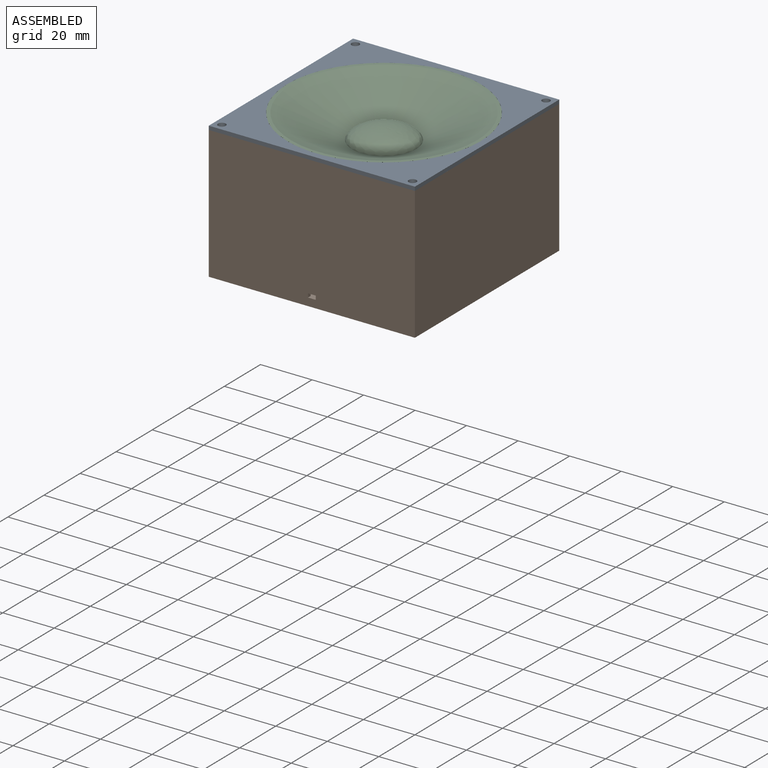
[diagram: assembled view]
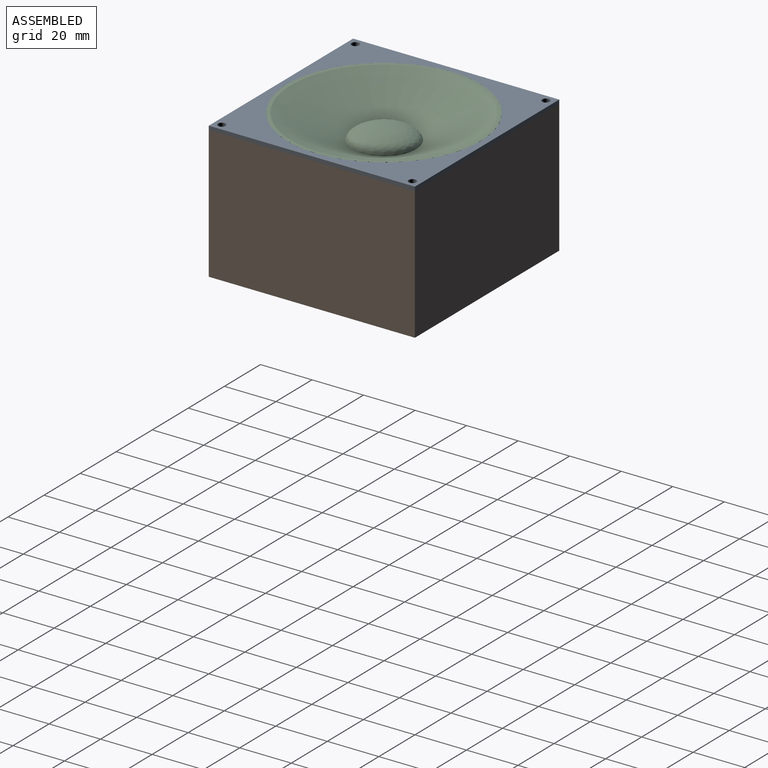
[diagram: assembled view, second angle]
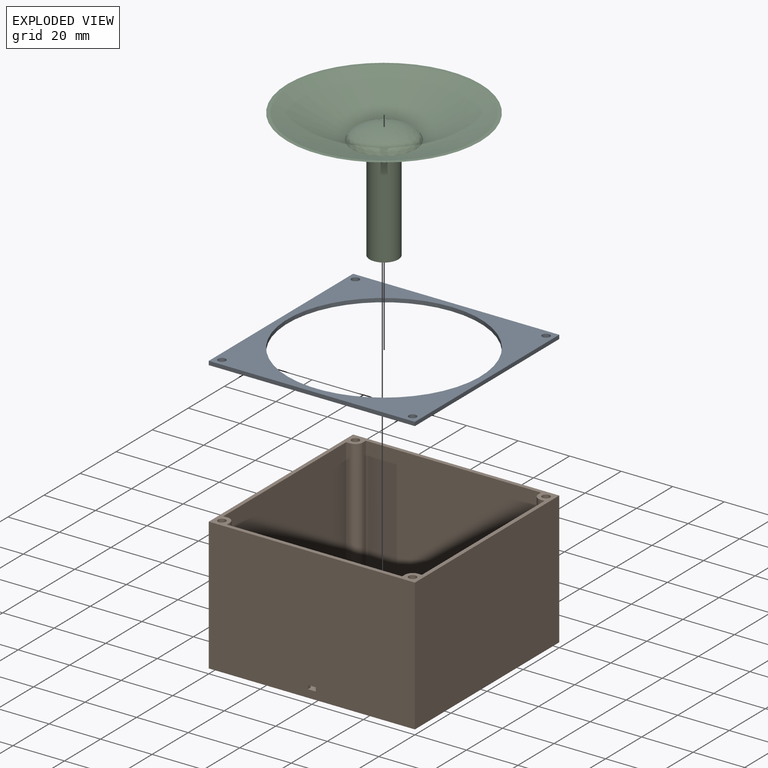
[diagram: exploded view]
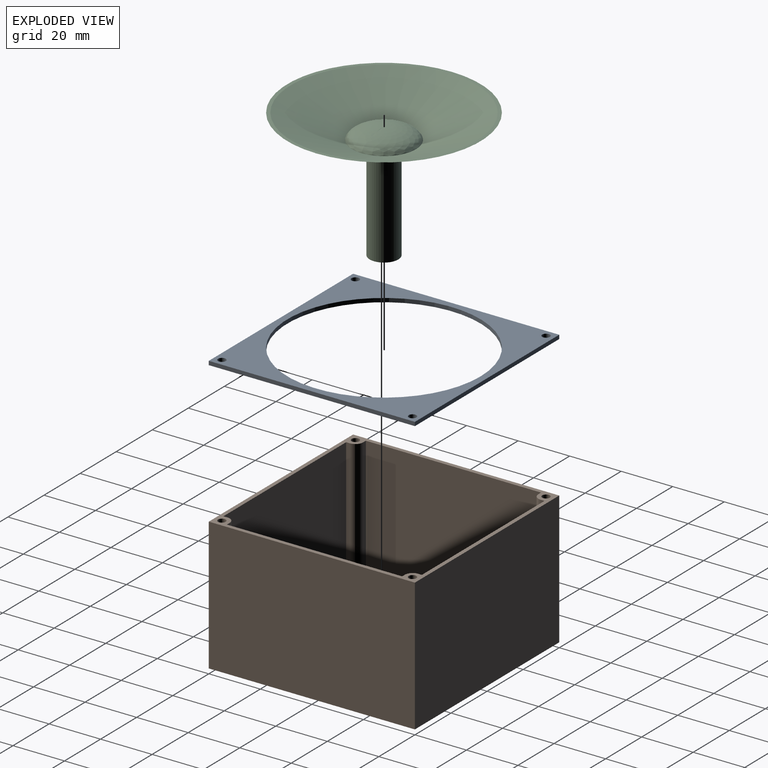
[diagram: exploded view, second angle]
ASSEMBLY  parts=3 mates=3
PART A: 11 faces, bbox 80x80x1.5 mm
  f0: plane 80x1.5mm, normal (-1,0,0), area 120mm2, adj f1,f4,f9,f10
  f1: plane 80x1.5mm, normal (0,-1,0), area 120mm2, adj f0,f2,f9,f10
  f2: plane 80x1.5mm, normal (1,0,0), area 120mm2, adj f1,f4,f9,f10
  f3: cylinder r=1.5mm len=3mm, axis (0,0,-1), area 14.1mm2, adj f9,f10
  f4: plane 80x1.5mm, normal (0,1,0), area 120mm2, adj f0,f2,f9,f10
  f5: cylinder r=1.5mm len=3mm, axis (0,0,-1), area 14.1mm2, adj f9,f10
  f6: cylinder r=1.5mm len=3mm, axis (0,0,-1), area 14.1mm2, adj f9,f10
  f7: cylinder r=1.5mm len=3mm, axis (0,0,-1), area 14.1mm2, adj f9,f10
  f8: cylinder r=37.5mm len=75mm, axis (0,0,-1), area 353.4mm2, adj f9,f10
  f9: plane 80x80mm, normal (0,0,1), area 1953.9mm2, adj f0,f1,f2,f3,f4,f5,f6,f7
  f10: plane 80x80mm, normal (0,0,-1), area 1953.9mm2, adj f0,f1,f2,f3,f4,f5,f6,f7
PART B: 35 faces, bbox 80x80x51.5 mm
  f0: plane 68x50mm, normal (0,1,0), area 3395.5mm2, adj f2,f9,f22,f28,f31,f32,f33,f34
  f1: plane 80x51.5mm, normal (0,-1,0), area 4115.5mm2, adj f9,f10,f12,f13,f31,f32,f33,f34
  f2: plane 77x77mm, normal (0,0,1), area 5855.7mm2, adj f0,f4,f5,f7,f15,f16,f17,f20
  f3: plane 3x3mm, normal (0,0,1), area 7.1mm2, adj f27
  f4: plane 68x50mm, normal (-1,0,0), area 3400mm2, adj f2,f9,f23,f30
  f5: plane 68x50mm, normal (0,-1,0), area 3400mm2, adj f2,f9,f15,f25
  f6: plane 3x3mm, normal (0,0,1), area 7.1mm2, adj f26
  f7: plane 68x50mm, normal (1,0,0), area 3400mm2, adj f2,f9,f17,f20
  f8: plane 3x3mm, normal (0,0,1), area 7.1mm2, adj f19
  f9: plane 80x80mm, normal (0,0,1), area 516mm2, adj f0,f1,f4,f5,f7,f10,f11,f12
  f10: plane 80x51.5mm, normal (1,0,0), area 4120mm2, adj f1,f9,f11,f13
  f11: plane 80x51.5mm, normal (0,1,0), area 4120mm2, adj f9,f10,f12,f13
  f12: plane 80x51.5mm, normal (-1,0,0), area 4120mm2, adj f1,f9,f11,f13
  f13: plane 80x80mm, normal (0,0,-1), area 6400mm2, adj f1,f10,f11,f12
  f14: plane 3x3mm, normal (0,0,1), area 7.1mm2, adj f18
  f15: plane 50x1.5mm, normal (1,0,0), area 75mm2, adj f2,f5,f9,f16
  f16: cylinder r=3mm len=50mm, axis (0,0,1), area 235.6mm2, adj f2,f9,f15,f17
  f17: plane 50x1.5mm, normal (0,-1,0), area 75mm2, adj f2,f7,f9,f16
  f18: cylinder r=1.5mm len=50mm, axis (0,0,1), area 471.2mm2, adj f9,f14
  f19: cylinder r=1.5mm len=50mm, axis (0,0,1), area 471.2mm2, adj f8,f9
  f20: plane 50x1.5mm, normal (0,1,0), area 75mm2, adj f2,f7,f9,f21
  f21: cylinder r=3mm len=50mm, axis (0,0,1), area 235.6mm2, adj f2,f9,f20,f22
  f22: plane 50x1.5mm, normal (1,0,0), area 75mm2, adj f0,f2,f9,f21
  f23: plane 50x1.5mm, normal (0,-1,0), area 75mm2, adj f2,f4,f9,f24
  f24: cylinder r=3mm len=50mm, axis (0,0,1), area 235.6mm2, adj f2,f9,f23,f25
  f25: plane 50x1.5mm, normal (-1,0,0), area 75mm2, adj f2,f5,f9,f24
  f26: cylinder r=1.5mm len=50mm, axis (0,0,1), area 471.2mm2, adj f6,f9
  f27: cylinder r=1.5mm len=50mm, axis (0,0,1), area 471.2mm2, adj f3,f9
  f28: plane 50x1.5mm, normal (-1,0,0), area 75mm2, adj f0,f2,f9,f29
  f29: cylinder r=3mm len=50mm, axis (0,0,1), area 235.6mm2, adj f2,f9,f28,f30
  f30: plane 50x1.5mm, normal (0,1,0), area 75mm2, adj f2,f4,f9,f29
  f31: plane 3x1.5mm, normal (0,0,1), area 4.5mm2, adj f0,f1,f32,f34
  f32: plane 1.5x1.5mm, normal (-1,0,0), area 2.3mm2, adj f0,f1,f31,f33
  f33: plane 3x1.5mm, normal (0,0,-1), area 4.5mm2, adj f0,f1,f32,f34
  f34: plane 1.5x1.5mm, normal (1,0,0), area 2.3mm2, adj f0,f1,f31,f33
PART C: 11 faces, bbox 75x75x50 mm
  f0: plane 75x75mm, normal (0,0,1), area 311.5mm2, adj f1,f4
  f1: cone r=37.5mm half-angle=68.2deg, axis (0,0,1), area 4229.5mm2, adj f0,f2
  f2: plane 25x25mm, normal (0,0,-1), area 100mm2, adj f1,f3
  f3: cone r=37.31mm half-angle=68.2deg, axis (0,0,1), area 63.5mm2, adj f2
  f4: cone r=37.31mm half-angle=68.2deg, axis (0,0,1), area 3899.5mm2, adj f0,f5
  f5: revolved ~24.87x24.87mm, area 584.5mm2, adj f4
  f6: revolved ~23.93x23.93mm, area 874.5mm2, adj f7
  f7: cylinder r=5.6mm len=43.96mm, axis (0,0,1), area 1546.8mm2, adj f6,f8
  f8: plane 11.2x11.2mm, normal (0,0,-1), area 16.8mm2, adj f7,f9
  f9: cylinder r=5.1mm len=44.06mm, axis (0,0,1), area 1411.8mm2, adj f8,f10
  f10: revolved ~10.2x10.2mm, area 82.3mm2, adj f9
PLACE A rot(axis=(0,0,1),90deg) t=(0,0,51.5)mm
PLACE B at identity fixed
PLACE C t=(0,0,53)mm
MATE fastened A.f8 <-> B.f9  axis (0,0,-1) through (0,0,51.5)mm
MATE slider C.f1 <-> A.f8  axis (0,0,1) through (0,0,53)mm
MATE planar C.f1 <-> A.f8  axis (0,0,1) through (0,0,53)mm
